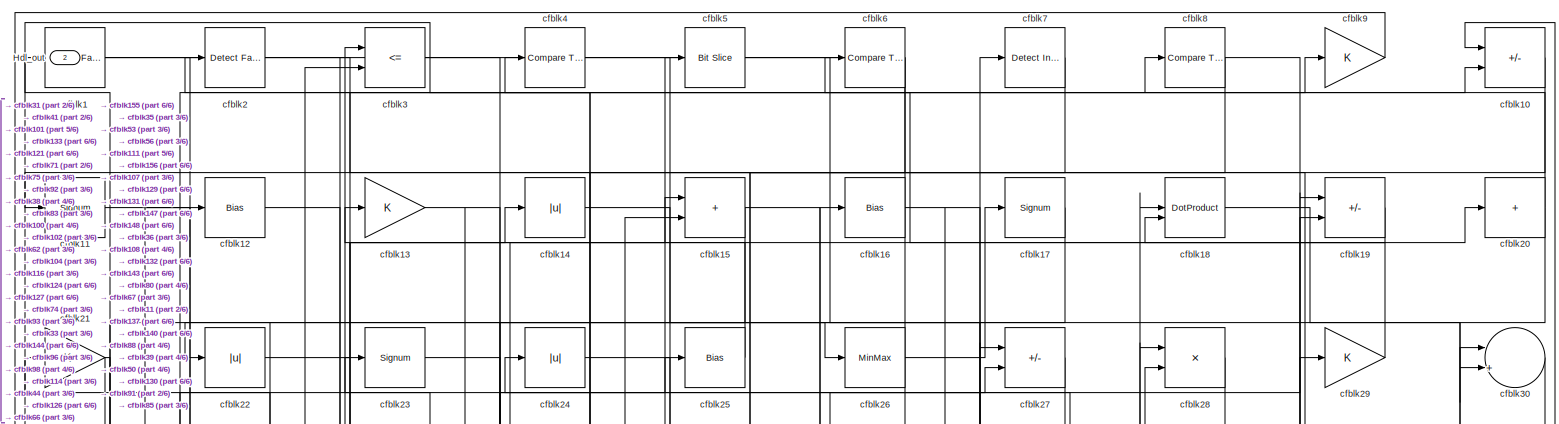
[diagram: root canvas - part 1/6, full width, top band]
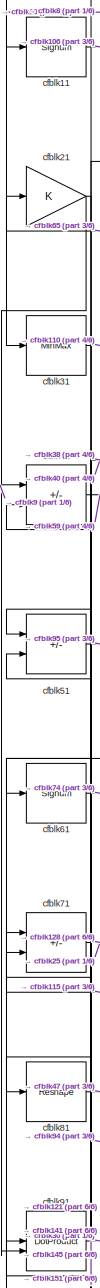
[diagram: root canvas - part 2/6, middle left region]
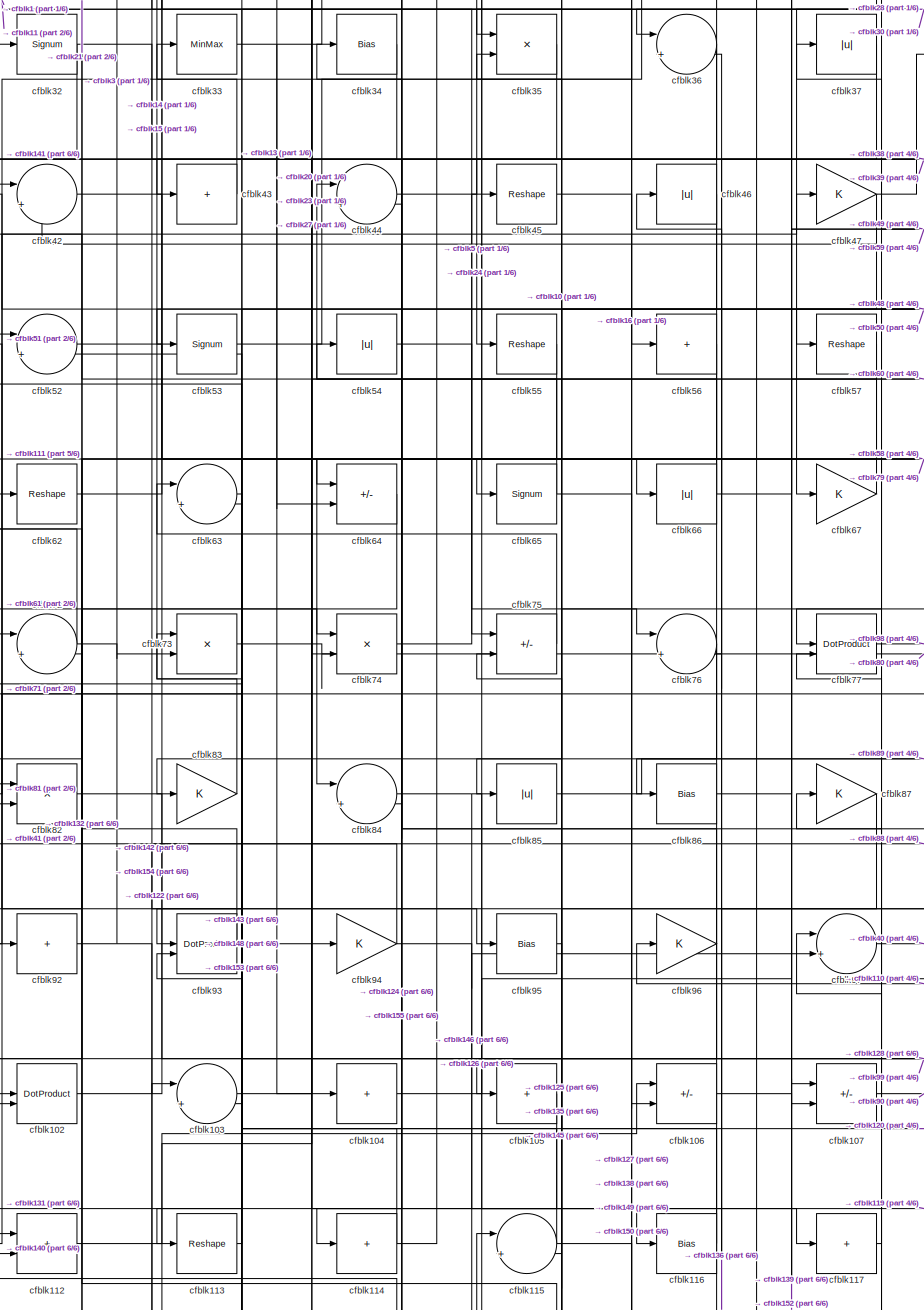
[diagram: root canvas - part 3/6, central region]
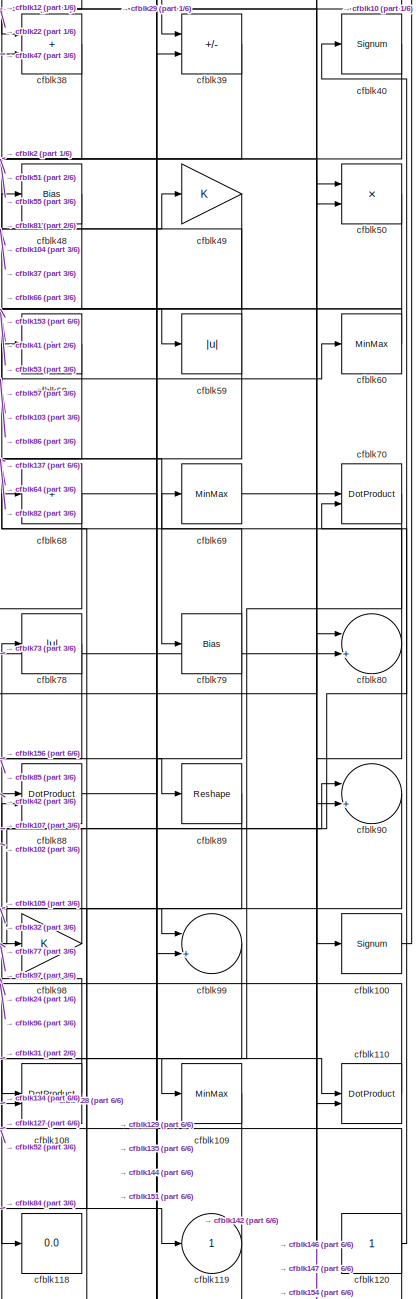
[diagram: root canvas - part 4/6, middle right region]
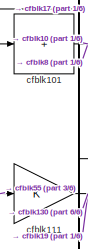
[diagram: root canvas - part 5/6, bottom left region]
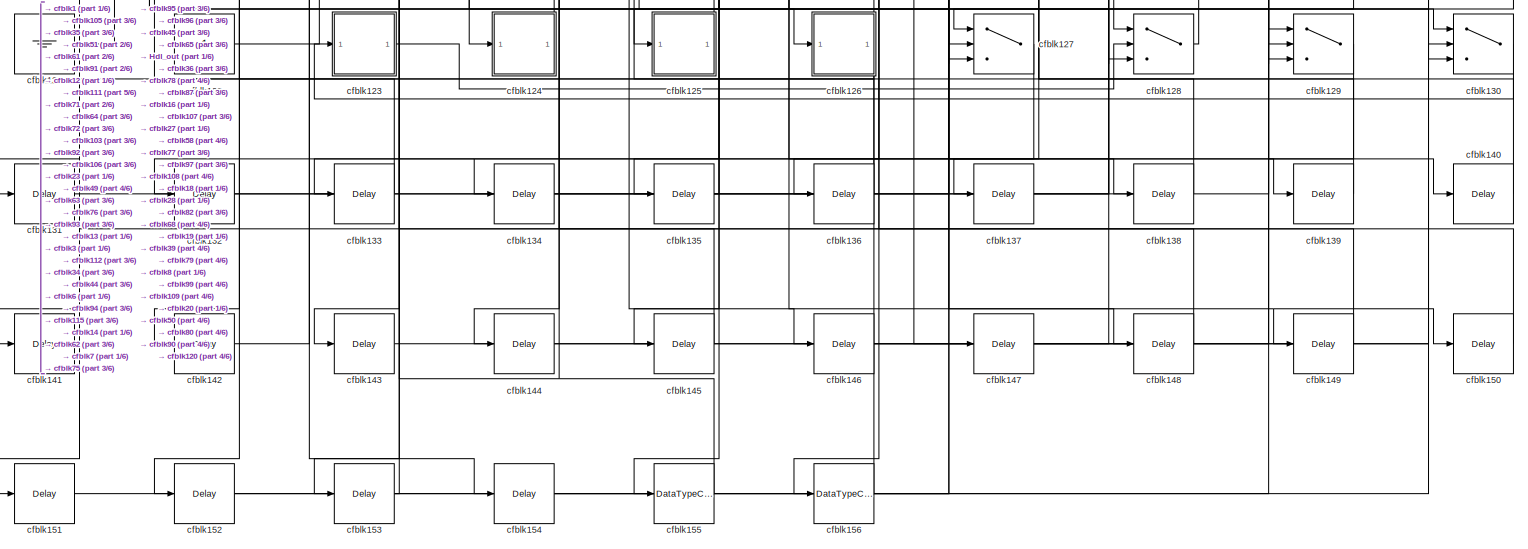
[diagram: root canvas - part 6/6, full width, bottom band]
MODEL slx_6565a7240b3b
KIND model
CONFIG AbsTol = auto
CONFIG EnableMultiTasking = off
CONFIG FixedStep = auto
CONFIG MaxStep = auto
CONFIG MinStep = auto
CONFIG RelTol = 1e-3
CONFIG SampleTimeConstraint = Unconstrained
CONFIG SolverName = VariableStepAuto
CONFIG StartTime = 0.0
CONFIG StopTime = 10.0
BLOCK [Outport] Hdl_out
  OutDataTypeStr = uint8
  Port = 2
BLOCK [Reference] cfblk1  REF=hdlsllib/Logic and Bit
Operations/Detect Fall
Negative
  SourceBlock = hdlsllib/Logic and Bit\nOperations/Detect Fall\nNegative
  SourceType = Detect Fall Negative
BLOCK [Sum] cfblk10
  IconShape = rectangular
  Inputs = +-
  OutDataTypeStr = uint8
BLOCK [Signum] cfblk100
BLOCK [Sum] cfblk101
  IconShape = rectangular
  Inputs = +
  OutDataTypeStr = uint8
BLOCK [DotProduct] cfblk102
  OutDataTypeStr = uint8
BLOCK [Sum] cfblk103
  Inputs = |++
  OutDataTypeStr = uint8
BLOCK [Sum] cfblk104
  IconShape = rectangular
  Inputs = +
  OutDataTypeStr = uint8
BLOCK [Sum] cfblk105
  IconShape = rectangular
  Inputs = +
  OutDataTypeStr = uint8
BLOCK [Sum] cfblk106
  IconShape = rectangular
  Inputs = +-
  OutDataTypeStr = uint8
BLOCK [Sum] cfblk107
  IconShape = rectangular
  Inputs = +-
  OutDataTypeStr = uint8
BLOCK [DotProduct] cfblk108
  OutDataTypeStr = uint8
BLOCK [MinMax] cfblk109
  OutDataTypeStr = uint8
BLOCK [Signum] cfblk11
BLOCK [DotProduct] cfblk110
  OutDataTypeStr = uint8
BLOCK [Gain] cfblk111
  OutDataTypeStr = uint8
BLOCK [Sum] cfblk112
  IconShape = rectangular
  OutDataTypeStr = uint8
BLOCK [Reshape] cfblk113
BLOCK [Sum] cfblk114
  IconShape = rectangular
  Inputs = +
  OutDataTypeStr = uint8
BLOCK [Sum] cfblk115
  Inputs = |++
  OutDataTypeStr = uint8
BLOCK [Bias] cfblk116
  Bias = 0.0
  SaturateOnIntegerOverflow = off
BLOCK [Sum] cfblk117
  IconShape = rectangular
  Inputs = +
  OutDataTypeStr = uint8
BLOCK [Display] cfblk118
  Decimation = 1
BLOCK [Outport] cfblk119
  OutDataTypeStr = uint8
  VectorParamsAs1DForOutWhenUnconnected = off
BLOCK [Bias] cfblk12
  Bias = 0.0
  SaturateOnIntegerOverflow = off
BLOCK [Constant] cfblk120
  OutDataTypeStr = uint8
  SampleTime = -1
BLOCK [Ground] cfblk121
BLOCK [Constant] cfblk122
  OutDataTypeStr = uint8
  SampleTime = -1
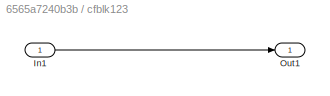
BLOCK [SubSystem] cfblk123
  LibrarySourceBlock = hdlsllib/Ports &\nSubsystems/Subsystem
BLOCK [Inport] cfblk123/In1
BLOCK [Outport] cfblk123/Out1
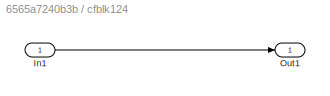
BLOCK [SubSystem] cfblk124
  LibrarySourceBlock = hdlsllib/Ports &\nSubsystems/Subsystem
BLOCK [Inport] cfblk124/In1
BLOCK [Outport] cfblk124/Out1
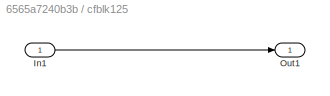
BLOCK [SubSystem] cfblk125
  LibrarySourceBlock = hdlsllib/Ports &\nSubsystems/Subsystem
BLOCK [Inport] cfblk125/In1
BLOCK [Outport] cfblk125/Out1
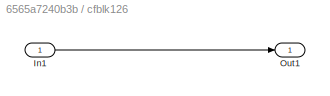
BLOCK [SubSystem] cfblk126
  LibrarySourceBlock = hdlsllib/Ports &\nSubsystems/Subsystem
BLOCK [Inport] cfblk126/In1
BLOCK [Outport] cfblk126/Out1
BLOCK [Switch] cfblk127
  InputSameDT = off
  OutDataTypeStr = uint8
  SaturateOnIntegerOverflow = off
BLOCK [Switch] cfblk128
  InputSameDT = off
  OutDataTypeStr = uint8
  SaturateOnIntegerOverflow = off
BLOCK [Switch] cfblk129
  InputSameDT = off
  OutDataTypeStr = uint8
  SaturateOnIntegerOverflow = off
BLOCK [Gain] cfblk13
  OutDataTypeStr = uint8
BLOCK [Switch] cfblk130
  InputSameDT = off
  OutDataTypeStr = uint8
  SaturateOnIntegerOverflow = off
BLOCK [Delay] cfblk131
  InputPortMap = u0
  SampleTime = 1
BLOCK [Delay] cfblk132
  InputPortMap = u0
  SampleTime = 1
BLOCK [Delay] cfblk133
  InputPortMap = u0
  SampleTime = 1
BLOCK [Delay] cfblk134
  InputPortMap = u0
  SampleTime = 1
BLOCK [Delay] cfblk135
  InputPortMap = u0
  SampleTime = 1
BLOCK [Delay] cfblk136
  InputPortMap = u0
  SampleTime = 1
BLOCK [Delay] cfblk137
  InputPortMap = u0
  SampleTime = 1
BLOCK [Delay] cfblk138
  InputPortMap = u0
  SampleTime = 1
BLOCK [Delay] cfblk139
  InputPortMap = u0
  SampleTime = 1
BLOCK [Abs] cfblk14
  OutDataTypeStr = uint8
  SaturateOnIntegerOverflow = off
BLOCK [Delay] cfblk140
  InputPortMap = u0
  SampleTime = 1
BLOCK [Delay] cfblk141
  InputPortMap = u0
  SampleTime = 1
BLOCK [Delay] cfblk142
  InputPortMap = u0
  SampleTime = 1
BLOCK [Delay] cfblk143
  InputPortMap = u0
  SampleTime = 1
BLOCK [Delay] cfblk144
  InputPortMap = u0
  SampleTime = 1
BLOCK [Delay] cfblk145
  InputPortMap = u0
  SampleTime = 1
BLOCK [Delay] cfblk146
  InputPortMap = u0
  SampleTime = 1
BLOCK [Delay] cfblk147
  InputPortMap = u0
  SampleTime = 1
BLOCK [Delay] cfblk148
  InputPortMap = u0
  SampleTime = 1
BLOCK [Delay] cfblk149
  InputPortMap = u0
  SampleTime = 1
BLOCK [Sum] cfblk15
  IconShape = rectangular
  OutDataTypeStr = uint8
BLOCK [Delay] cfblk150
  InputPortMap = u0
  SampleTime = 1
BLOCK [Delay] cfblk151
  InputPortMap = u0
  SampleTime = 1
BLOCK [Delay] cfblk152
  InputPortMap = u0
  SampleTime = 1
BLOCK [Delay] cfblk153
  InputPortMap = u0
  SampleTime = 1
BLOCK [Delay] cfblk154
  InputPortMap = u0
  SampleTime = 1
BLOCK [DataTypeConversion] cfblk155
  OutDataTypeStr = uint8
  RndMeth = Floor
  SaturateOnIntegerOverflow = off
BLOCK [DataTypeConversion] cfblk156
  OutDataTypeStr = uint8
  RndMeth = Floor
  SaturateOnIntegerOverflow = off
BLOCK [Bias] cfblk16
  Bias = 0.0
  SaturateOnIntegerOverflow = off
BLOCK [Signum] cfblk17
BLOCK [DotProduct] cfblk18
  OutDataTypeStr = uint8
BLOCK [Sum] cfblk19
  IconShape = rectangular
  Inputs = +-
  OutDataTypeStr = uint8
BLOCK [Reference] cfblk2  REF=hdlsllib/Logic and Bit
Operations/Detect Fall
Nonpositive
  SourceBlock = hdlsllib/Logic and Bit\nOperations/Detect Fall\nNonpositive
  SourceType = Detect Fall Nonpositive
BLOCK [Sum] cfblk20
  IconShape = rectangular
  Inputs = +
  OutDataTypeStr = uint8
BLOCK [Gain] cfblk21
  OutDataTypeStr = uint8
BLOCK [Abs] cfblk22
  OutDataTypeStr = uint8
  SaturateOnIntegerOverflow = off
BLOCK [Signum] cfblk23
BLOCK [Abs] cfblk24
  OutDataTypeStr = uint8
  SaturateOnIntegerOverflow = off
BLOCK [Bias] cfblk25
  Bias = 0.0
  SaturateOnIntegerOverflow = off
BLOCK [MinMax] cfblk26
  OutDataTypeStr = uint8
BLOCK [Sum] cfblk27
  IconShape = rectangular
  Inputs = +-
  OutDataTypeStr = uint8
BLOCK [Product] cfblk28
  Inputs = */
  OutDataTypeStr = uint8
  RndMeth = Zero
  SaturateOnIntegerOverflow = on
BLOCK [Gain] cfblk29
  OutDataTypeStr = uint8
BLOCK [RelationalOperator] cfblk3
  InputSameDT = off
  Operator = <=
  OutDataTypeStr = boolean
BLOCK [Sum] cfblk30
  Inputs = |++
  OutDataTypeStr = uint8
BLOCK [MinMax] cfblk31
  OutDataTypeStr = uint8
BLOCK [Signum] cfblk32
BLOCK [MinMax] cfblk33
  OutDataTypeStr = uint8
BLOCK [Bias] cfblk34
  Bias = 0.0
  SaturateOnIntegerOverflow = off
BLOCK [Product] cfblk35
  Inputs = */
  OutDataTypeStr = uint8
  RndMeth = Zero
  SaturateOnIntegerOverflow = on
BLOCK [Sum] cfblk36
  Inputs = |++
  OutDataTypeStr = uint8
BLOCK [Abs] cfblk37
  OutDataTypeStr = uint8
  SaturateOnIntegerOverflow = off
BLOCK [Sum] cfblk38
  IconShape = rectangular
  OutDataTypeStr = uint8
BLOCK [Sum] cfblk39
  IconShape = rectangular
  Inputs = +-
  OutDataTypeStr = uint8
BLOCK [Reference] cfblk4  REF=hdlsllib/Logic and Bit
Operations/Compare
To Zero
  SourceBlock = hdlsllib/Logic and Bit\nOperations/Compare\nTo Zero
  SourceType = Compare To Zero
BLOCK [Signum] cfblk40
BLOCK [Sum] cfblk41
  IconShape = rectangular
  Inputs = +-
  OutDataTypeStr = uint8
BLOCK [Sum] cfblk42
  Inputs = |++
  OutDataTypeStr = uint8
BLOCK [Sum] cfblk43
  IconShape = rectangular
  Inputs = +
  OutDataTypeStr = uint8
BLOCK [Sum] cfblk44
  Inputs = |++
  OutDataTypeStr = uint8
BLOCK [Reshape] cfblk45
BLOCK [Abs] cfblk46
  OutDataTypeStr = uint8
  SaturateOnIntegerOverflow = off
BLOCK [Gain] cfblk47
  OutDataTypeStr = uint8
BLOCK [Bias] cfblk48
  Bias = 0.0
  SaturateOnIntegerOverflow = off
BLOCK [Gain] cfblk49
  OutDataTypeStr = uint8
BLOCK [Reference] cfblk5  REF=hdlsllib/Logic and Bit
Operations/Bit Slice
  SourceBlock = hdlsllib/Logic and Bit\nOperations/Bit Slice
  SourceType = Bit Slice
BLOCK [Product] cfblk50
  Inputs = */
  OutDataTypeStr = uint8
  RndMeth = Zero
  SaturateOnIntegerOverflow = on
BLOCK [Sum] cfblk51
  IconShape = rectangular
  Inputs = +-
  OutDataTypeStr = uint8
BLOCK [Sum] cfblk52
  Inputs = |++
  OutDataTypeStr = uint8
BLOCK [Signum] cfblk53
BLOCK [Abs] cfblk54
  OutDataTypeStr = uint8
  SaturateOnIntegerOverflow = off
BLOCK [Reshape] cfblk55
BLOCK [Sum] cfblk56
  IconShape = rectangular
  Inputs = +
  OutDataTypeStr = uint8
BLOCK [Reshape] cfblk57
BLOCK [Sum] cfblk58
  IconShape = rectangular
  Inputs = +
  OutDataTypeStr = uint8
BLOCK [Abs] cfblk59
  OutDataTypeStr = uint8
  SaturateOnIntegerOverflow = off
BLOCK [Reference] cfblk6  REF=hdlsllib/Logic and Bit
Operations/Compare
To Zero
  SourceBlock = hdlsllib/Logic and Bit\nOperations/Compare\nTo Zero
  SourceType = Compare To Zero
BLOCK [MinMax] cfblk60
  OutDataTypeStr = uint8
BLOCK [Signum] cfblk61
BLOCK [Reshape] cfblk62
BLOCK [Sum] cfblk63
  Inputs = |++
  OutDataTypeStr = uint8
BLOCK [Sum] cfblk64
  IconShape = rectangular
  Inputs = +-
  OutDataTypeStr = uint8
BLOCK [Signum] cfblk65
BLOCK [Abs] cfblk66
  OutDataTypeStr = uint8
  SaturateOnIntegerOverflow = off
BLOCK [Gain] cfblk67
  OutDataTypeStr = uint8
BLOCK [Sum] cfblk68
  IconShape = rectangular
  Inputs = +
  OutDataTypeStr = uint8
BLOCK [MinMax] cfblk69
  OutDataTypeStr = uint8
BLOCK [Reference] cfblk7  REF=simulink/Logic and Bit
Operations/Detect
Increase
  LibrarySourceBlock = hdlsllib/Logic and Bit\nOperations/Detect\nIncrease
  SourceBlock = simulink/Logic and Bit\nOperations/Detect\nIncrease
  SourceType = Detect Increase
BLOCK [DotProduct] cfblk70
  OutDataTypeStr = uint8
BLOCK [Sum] cfblk71
  IconShape = rectangular
  Inputs = +-
  OutDataTypeStr = uint8
BLOCK [Sum] cfblk72
  Inputs = |++
  OutDataTypeStr = uint8
BLOCK [Product] cfblk73
  Inputs = */
  OutDataTypeStr = uint8
  RndMeth = Zero
  SaturateOnIntegerOverflow = on
BLOCK [Product] cfblk74
  Inputs = */
  OutDataTypeStr = uint8
  RndMeth = Zero
  SaturateOnIntegerOverflow = on
BLOCK [Sum] cfblk75
  IconShape = rectangular
  Inputs = +-
  OutDataTypeStr = uint8
BLOCK [Sum] cfblk76
  Inputs = |++
  OutDataTypeStr = uint8
BLOCK [DotProduct] cfblk77
  OutDataTypeStr = uint8
BLOCK [Abs] cfblk78
  OutDataTypeStr = uint8
  SaturateOnIntegerOverflow = off
BLOCK [Bias] cfblk79
  Bias = 0.0
  SaturateOnIntegerOverflow = off
BLOCK [Reference] cfblk8  REF=hdlsllib/Logic and Bit
Operations/Compare
To Zero
  SourceBlock = hdlsllib/Logic and Bit\nOperations/Compare\nTo Zero
  SourceType = Compare To Zero
BLOCK [Sum] cfblk80
  Inputs = |++
  OutDataTypeStr = uint8
BLOCK [Reshape] cfblk81
BLOCK [Product] cfblk82
  Inputs = */
  OutDataTypeStr = uint8
  RndMeth = Zero
  SaturateOnIntegerOverflow = on
BLOCK [Gain] cfblk83
  OutDataTypeStr = uint8
BLOCK [Sum] cfblk84
  Inputs = |++
  OutDataTypeStr = uint8
BLOCK [Abs] cfblk85
  OutDataTypeStr = uint8
  SaturateOnIntegerOverflow = off
BLOCK [Bias] cfblk86
  Bias = 0.0
  SaturateOnIntegerOverflow = off
BLOCK [Gain] cfblk87
  OutDataTypeStr = uint8
BLOCK [DotProduct] cfblk88
  OutDataTypeStr = uint8
BLOCK [Reshape] cfblk89
BLOCK [Gain] cfblk9
  OutDataTypeStr = uint8
BLOCK [Sum] cfblk90
  Inputs = |++
  OutDataTypeStr = uint8
BLOCK [DotProduct] cfblk91
  OutDataTypeStr = uint8
BLOCK [Sum] cfblk92
  IconShape = rectangular
  Inputs = +
  OutDataTypeStr = uint8
BLOCK [DotProduct] cfblk93
  OutDataTypeStr = uint8
BLOCK [Gain] cfblk94
  OutDataTypeStr = uint8
BLOCK [Bias] cfblk95
  Bias = 0.0
  SaturateOnIntegerOverflow = off
BLOCK [Gain] cfblk96
  OutDataTypeStr = uint8
BLOCK [Sum] cfblk97
  Inputs = |++
  OutDataTypeStr = uint8
BLOCK [Gain] cfblk98
  OutDataTypeStr = uint8
BLOCK [Sum] cfblk99
  Inputs = |++
  OutDataTypeStr = uint8
LINE cfblk100:1 -> cfblk10:1
NET cfblk101:1 -> cfblk10:2, cfblk8:1
NET cfblk102:1 -> cfblk14:1, cfblk88:2
LINE cfblk103:1 -> cfblk60:1
LINE cfblk104:1 -> cfblk49:1
LINE cfblk105:1 -> cfblk131:1
LINE cfblk106:1 -> cfblk139:1
LINE cfblk107:1 -> cfblk90:1
LINE cfblk108:1 -> cfblk24:1
LINE cfblk109:1 -> cfblk142:1
LINE cfblk10:1 -> cfblk35:1
LINE cfblk110:1 -> cfblk96:1
NET cfblk111:1 -> cfblk130:3, cfblk19:1
LINE cfblk112:1 -> cfblk94:1
LINE cfblk113:1 -> cfblk73:1
NET cfblk114:1 -> cfblk15:2, cfblk72:1
NET cfblk115:1 -> cfblk138:1, cfblk52:2, cfblk71:1
LINE cfblk116:1 -> cfblk35:2
LINE cfblk117:1 -> cfblk87:1
LINE cfblk11:1 -> cfblk106:2
NET cfblk120:1 -> cfblk127:1, cfblk52:1, cfblk70:2, cfblk78:1
NET cfblk121:1 -> cfblk12:1, cfblk91:1
LINE cfblk122:1 -> cfblk106:1
LINE cfblk123/In1:1 -> cfblk123/Out1:1
LINE cfblk123:1 -> cfblk128:2
LINE cfblk124/In1:1 -> cfblk124/Out1:1
LINE cfblk124:1 -> cfblk112:1
LINE cfblk125/In1:1 -> cfblk125/Out1:1
LINE cfblk125:1 -> cfblk62:1
LINE cfblk126/In1:1 -> cfblk126/Out1:1
LINE cfblk126:1 -> cfblk115:1
LINE cfblk127:1 -> cfblk152:1
LINE cfblk128:1 -> cfblk68:1
NET cfblk129:1 -> cfblk133:1, cfblk134:1
LINE cfblk12:1 -> cfblk38:1
LINE cfblk130:1 -> cfblk123:1
LINE cfblk131:1 -> cfblk27:1
LINE cfblk132:1 -> cfblk28:1
LINE cfblk133:1 -> cfblk1:1
LINE cfblk134:1 -> cfblk108:2
LINE cfblk135:1 -> cfblk75:2
LINE cfblk136:1 -> cfblk72:2
LINE cfblk137:1 -> cfblk19:2
LINE cfblk138:1 -> cfblk77:2
LINE cfblk139:1 -> cfblk97:1
NET cfblk13:1 -> cfblk104:1, cfblk127:2
LINE cfblk140:1 -> cfblk112:2
LINE cfblk141:1 -> cfblk71:2
LINE cfblk142:1 -> cfblk103:1
LINE cfblk143:1 -> cfblk18:1
LINE cfblk144:1 -> cfblk39:2
LINE cfblk145:1 -> cfblk51:2
LINE cfblk146:1 -> cfblk90:2
LINE cfblk147:1 -> cfblk50:1
LINE cfblk148:1 -> cfblk93:2
LINE cfblk149:1 -> cfblk44:2
LINE cfblk14:1 -> cfblk126:1
LINE cfblk150:1 -> cfblk36:2
LINE cfblk151:1 -> cfblk99:2
LINE cfblk152:1 -> cfblk107:1
LINE cfblk153:1 -> cfblk63:2
LINE cfblk154:1 -> cfblk80:1
NET cfblk155:1 -> cfblk23:1, cfblk34:1
NET cfblk156:1 -> Hdl_out:1, cfblk7:1
NET cfblk15:1 -> cfblk22:1, cfblk56:1, cfblk92:1
NET cfblk16:1 -> cfblk129:2, cfblk147:1, cfblk148:1
LINE cfblk17:1 -> cfblk101:1
LINE cfblk18:1 -> cfblk30:2
LINE cfblk19:1 -> cfblk18:2
LINE cfblk1:1 -> cfblk75:1
NET cfblk20:1 -> cfblk130:2, cfblk31:1, cfblk74:2
NET cfblk21:1 -> cfblk61:1, cfblk91:2
NET cfblk22:1 -> cfblk100:1, cfblk9:1
LINE cfblk23:1 -> cfblk116:1
LINE cfblk24:1 -> cfblk66:1
LINE cfblk25:1 -> cfblk4:1
LINE cfblk26:1 -> cfblk17:1
LINE cfblk27:1 -> cfblk36:1
LINE cfblk28:1 -> cfblk67:1
LINE cfblk29:1 -> cfblk6:1
NET cfblk2:1 -> cfblk39:1, cfblk50:2
NET cfblk30:1 -> cfblk83:1, cfblk85:1
LINE cfblk31:1 -> cfblk110:1
NET cfblk32:1 -> cfblk102:2, cfblk99:1
NET cfblk33:1 -> cfblk20:1, cfblk64:2
LINE cfblk34:1 -> cfblk43:1
NET cfblk35:1 -> cfblk141:1, cfblk84:2
LINE cfblk36:1 -> cfblk114:1
LINE cfblk37:1 -> cfblk86:1
NET cfblk38:1 -> cfblk51:1, cfblk82:2
LINE cfblk39:1 -> cfblk55:1
LINE cfblk3:1 -> cfblk124:1
LINE cfblk40:1 -> cfblk81:1
LINE cfblk41:1 -> cfblk59:1
LINE cfblk42:1 -> cfblk88:1
LINE cfblk43:1 -> cfblk33:1
LINE cfblk44:1 -> cfblk5:1
NET cfblk45:1 -> cfblk149:1, cfblk150:1
LINE cfblk46:1 -> cfblk65:1
NET cfblk47:1 -> cfblk115:2, cfblk38:2, cfblk42:2, cfblk76:2
LINE cfblk48:1 -> cfblk77:1
LINE cfblk49:1 -> cfblk153:1
LINE cfblk4:1 -> cfblk26:1
LINE cfblk50:1 -> cfblk53:1
LINE cfblk51:1 -> cfblk95:1
LINE cfblk52:1 -> cfblk79:1
LINE cfblk53:1 -> cfblk16:1
LINE cfblk54:1 -> cfblk76:1
LINE cfblk55:1 -> cfblk111:1
LINE cfblk56:1 -> cfblk102:1
LINE cfblk57:1 -> cfblk113:1
NET cfblk58:1 -> cfblk137:1, cfblk84:1
NET cfblk59:1 -> cfblk37:1, cfblk64:1, cfblk82:1
LINE cfblk5:1 -> cfblk107:2
LINE cfblk60:1 -> cfblk57:1
NET cfblk61:1 -> cfblk151:1, cfblk74:1
LINE cfblk62:1 -> cfblk15:1
LINE cfblk63:1 -> cfblk93:1
LINE cfblk64:1 -> cfblk132:1
NET cfblk65:1 -> cfblk127:3, cfblk21:1
NET cfblk66:1 -> cfblk46:1, cfblk48:1, cfblk54:1
LINE cfblk67:1 -> cfblk44:1
NET cfblk68:1 -> cfblk129:1, cfblk135:1
LINE cfblk69:1 -> cfblk70:1
LINE cfblk6:1 -> cfblk144:1
LINE cfblk70:1 -> cfblk109:1
NET cfblk71:1 -> cfblk128:3, cfblk25:1
NET cfblk72:1 -> cfblk32:1, cfblk73:2
LINE cfblk73:1 -> cfblk80:2
LINE cfblk74:1 -> cfblk45:1
LINE cfblk75:1 -> cfblk63:1
LINE cfblk76:1 -> cfblk143:1
LINE cfblk77:1 -> cfblk98:1
LINE cfblk78:1 -> cfblk156:1
NET cfblk79:1 -> cfblk129:3, cfblk69:1
LINE cfblk7:1 -> cfblk155:1
NET cfblk80:1 -> cfblk110:2, cfblk28:2
LINE cfblk81:1 -> cfblk47:1
LINE cfblk82:1 -> cfblk128:1
LINE cfblk83:1 -> cfblk3:1
NET cfblk84:1 -> cfblk117:1, cfblk119:1
LINE cfblk85:1 -> cfblk89:1
LINE cfblk86:1 -> cfblk58:1
LINE cfblk87:1 -> cfblk136:1
LINE cfblk88:1 -> cfblk29:1
LINE cfblk89:1 -> cfblk105:1
NET cfblk8:1 -> cfblk11:1, cfblk130:1, cfblk140:1
LINE cfblk90:1 -> cfblk108:1
LINE cfblk91:1 -> cfblk30:1
NET cfblk92:1 -> cfblk154:1, cfblk3:2
NET cfblk93:1 -> cfblk27:2, cfblk42:1
NET cfblk94:1 -> cfblk146:1, cfblk41:2, cfblk97:2
LINE cfblk95:1 -> cfblk145:1
NET cfblk96:1 -> cfblk125:1, cfblk13:1
LINE cfblk97:1 -> cfblk40:1
LINE cfblk98:1 -> cfblk2:1
NET cfblk99:1 -> cfblk103:2, cfblk118:1
LINE cfblk9:1 -> cfblk41:1
note: NET lines group one-source signal fan-out (src -> all destinations, sorted); 1:1 wires keep LINE
